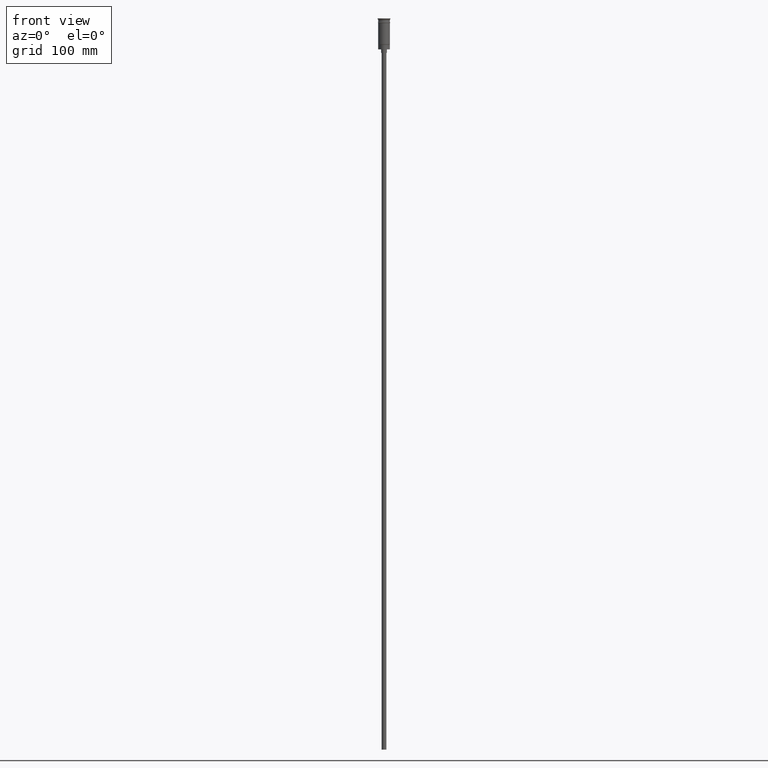
[diagram: clean part render]
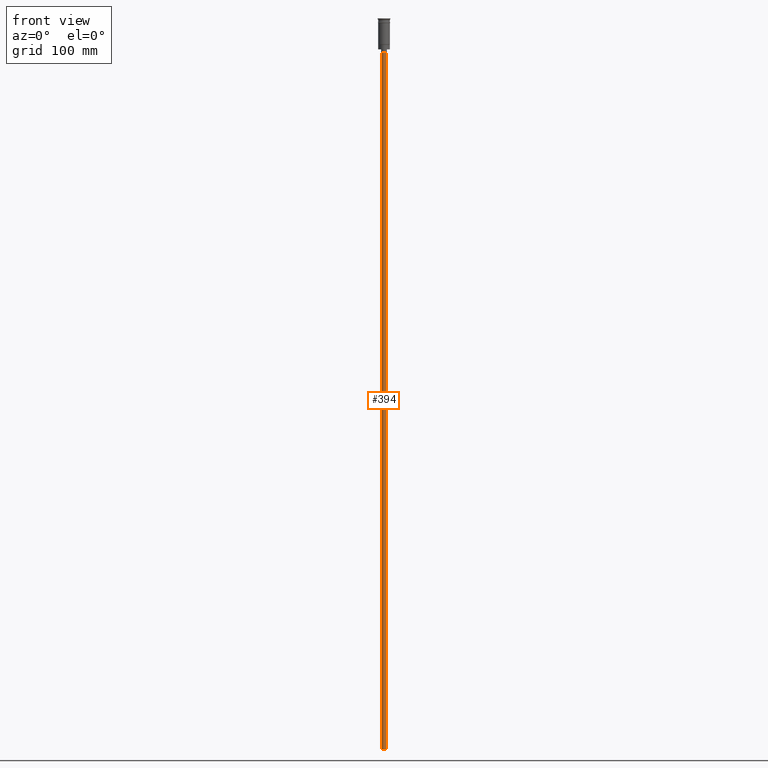
[diagram: same view with one face highlighted and labeled with its STEP entity id]
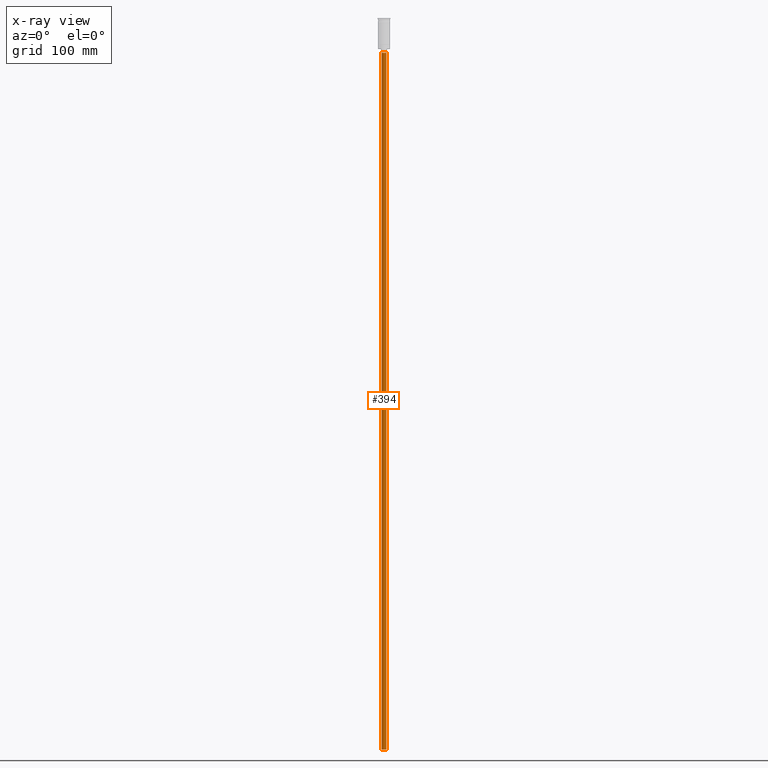
[diagram: x-ray of the same camera — body ghosted, the highlighted face saturated]
A machine part, front view. The second image highlights one B-rep face of the part: STEP entity #394.
The next image is the same camera in x-ray: the body ghosted, the highlighted face saturated — about 0% of this face is hidden behind the body in this view.
In plain terms, the highlighted cylindrical surface (edge-blend (fillet) strip) has radius 2 mm, axis along (-0, -0, 1).
Its self-contained STEP definition (entity closure, byte-faithful):
#10 = VERTEX_POINT ( 'NONE', #362 ) ;
#41 = CARTESIAN_POINT ( 'NONE',  ( 0.000000000000000000, 0.000000000000000000, -626.5000000000000000 ) ) ;
#91 = CARTESIAN_POINT ( 'NONE',  ( -2.000000000000000000, 2.449293598294706414E-16, -626.5000000000000000 ) ) ;
#117 = EDGE_LOOP ( 'NONE', ( #1229, #1002, #1576, #1171 ) ) ;
#131 = EDGE_CURVE ( 'NONE', #1361, #10, #1156, .T. ) ;
#134 = EDGE_CURVE ( 'NONE', #1361, #1412, #1301, .T. ) ;
#155 = DIRECTION ( 'NONE',  ( -1.000000000000000000, 0.000000000000000000, 0.000000000000000000 ) ) ;
#192 = DIRECTION ( 'NONE',  ( -0.000000000000000000, -0.000000000000000000, 1.000000000000000000 ) ) ;
#208 = CARTESIAN_POINT ( 'NONE',  ( 2.000000000000000000, 0.000000000000000000, -29.50000000000000000 ) ) ;
#281 = CARTESIAN_POINT ( 'NONE',  ( 0.000000000000000000, 0.000000000000000000, -626.5000000000000000 ) ) ;
#362 = CARTESIAN_POINT ( 'NONE',  ( -2.000000000000000000, 2.449293598294706414E-16, -626.5000000000000000 ) ) ;
#373 = DIRECTION ( 'NONE',  ( -0.000000000000000000, -0.000000000000000000, 1.000000000000000000 ) ) ;
#394 = ADVANCED_FACE ( 'NONE', ( #1515 ), #1008, .T. ) ;
#435 = DIRECTION ( 'NONE',  ( 0.000000000000000000, 0.000000000000000000, -1.000000000000000000 ) ) ;
#522 = DIRECTION ( 'NONE',  ( 1.000000000000000000, 0.000000000000000000, 0.000000000000000000 ) ) ;
#560 = CIRCLE ( 'NONE', #1161, 2.000000000000000000 ) ;
#583 = VECTOR ( 'NONE', #192, 1000.000000000000000 ) ;
#720 = LINE ( 'NONE', #91, #851 ) ;
#774 = CARTESIAN_POINT ( 'NONE',  ( 0.000000000000000000, 0.000000000000000000, -29.50000000000000000 ) ) ;
#778 = CARTESIAN_POINT ( 'NONE',  ( 2.000000000000000000, 0.000000000000000000, -626.5000000000000000 ) ) ;
#800 = DIRECTION ( 'NONE',  ( -1.000000000000000000, 0.000000000000000000, 0.000000000000000000 ) ) ;
#851 = VECTOR ( 'NONE', #1477, 1000.000000000000000 ) ;
#865 = CARTESIAN_POINT ( 'NONE',  ( -2.000000000000000000, 2.449293598294706414E-16, -29.50000000000000000 ) ) ;
#1002 = ORIENTED_EDGE ( 'NONE', *, *, #131, .F. ) ;
#1004 = AXIS2_PLACEMENT_3D ( 'NONE', #281, #1399, #155 ) ;
#1008 = CYLINDRICAL_SURFACE ( 'NONE', #1236, 2.000000000000000000 ) ;
#1045 = EDGE_CURVE ( 'NONE', #10, #1569, #720, .T. ) ;
#1156 = CIRCLE ( 'NONE', #1004, 2.000000000000000000 ) ;
#1161 = AXIS2_PLACEMENT_3D ( 'NONE', #774, #435, #800 ) ;
#1171 = ORIENTED_EDGE ( 'NONE', *, *, #1306, .T. ) ;
#1229 = ORIENTED_EDGE ( 'NONE', *, *, #1045, .F. ) ;
#1236 = AXIS2_PLACEMENT_3D ( 'NONE', #41, #373, #522 ) ;
#1272 = CARTESIAN_POINT ( 'NONE',  ( 2.000000000000000000, 0.000000000000000000, -626.5000000000000000 ) ) ;
#1301 = LINE ( 'NONE', #778, #583 ) ;
#1306 = EDGE_CURVE ( 'NONE', #1412, #1569, #560, .T. ) ;
#1361 = VERTEX_POINT ( 'NONE', #1272 ) ;
#1399 = DIRECTION ( 'NONE',  ( 0.000000000000000000, 0.000000000000000000, -1.000000000000000000 ) ) ;
#1412 = VERTEX_POINT ( 'NONE', #208 ) ;
#1477 = DIRECTION ( 'NONE',  ( -0.000000000000000000, -0.000000000000000000, 1.000000000000000000 ) ) ;
#1515 = FACE_OUTER_BOUND ( 'NONE', #117, .T. ) ;
#1569 = VERTEX_POINT ( 'NONE', #865 ) ;
#1576 = ORIENTED_EDGE ( 'NONE', *, *, #134, .T. ) ;